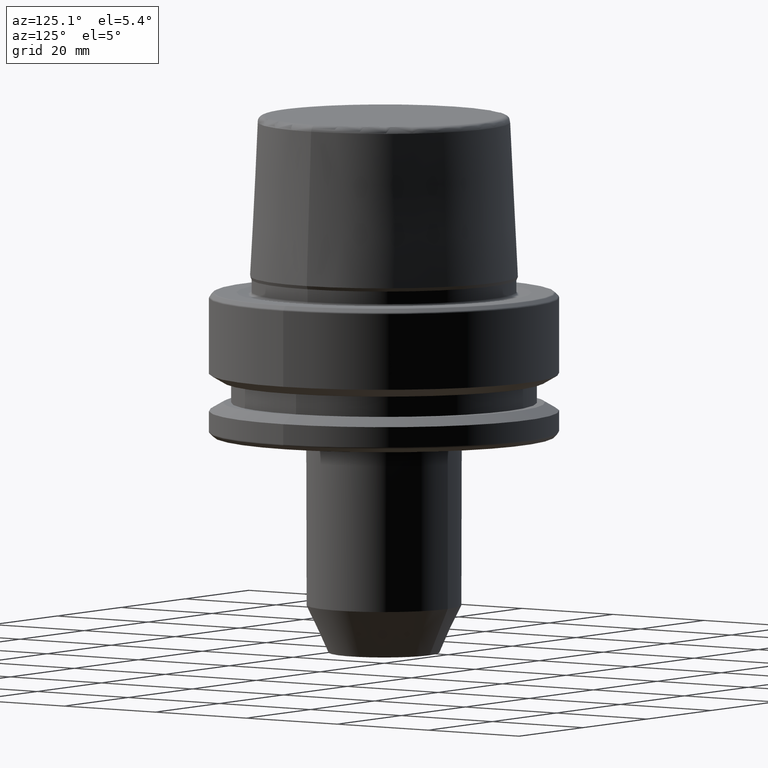
[diagram: clean part render]
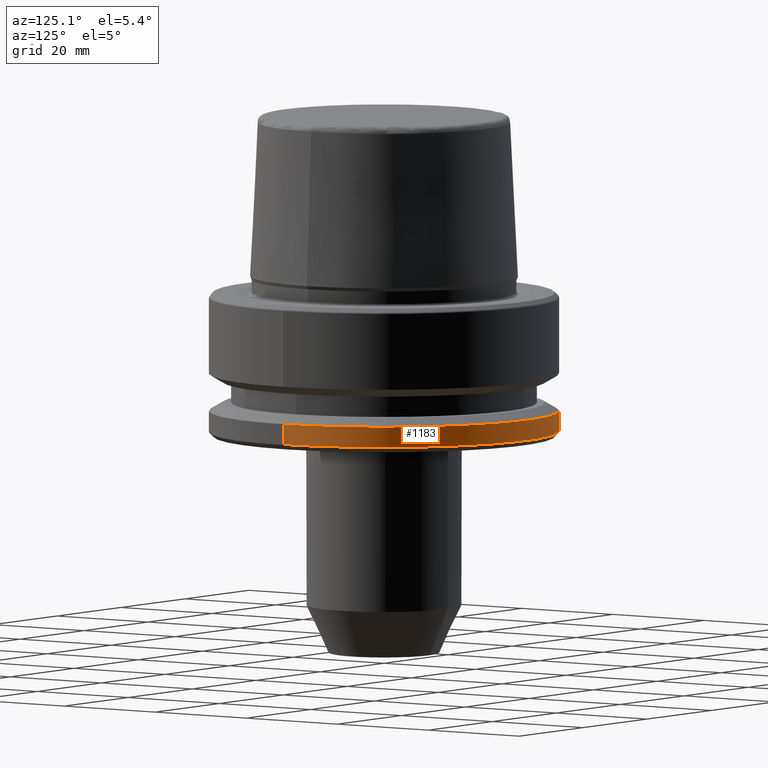
[diagram: same view with one face highlighted and labeled with its STEP entity id]
A machine part, auxiliary view. The second image highlights one B-rep face of the part: STEP entity #1183.
In plain terms, the highlighted cylindrical surface (partial cylindrical patch) has radius 31.5 mm, axis along (-0, -0, 1).
Its self-contained STEP definition (entity closure, byte-faithful):
#4 = ORIENTED_EDGE ( 'NONE', *, *, #1073, .F. ) ;
#9 = DIRECTION ( 'NONE',  ( -0.0000000000000000000, -0.0000000000000000000, 1.000000000000000000 ) ) ;
#66 = EDGE_CURVE ( 'NONE', #1158, #666, #207, .T. ) ;
#140 = DIRECTION ( 'NONE',  ( 1.000000000000000000, 0.0000000000000000000, 0.0000000000000000000 ) ) ;
#155 = VECTOR ( 'NONE', #1110, 1000.000000000000000 ) ;
#201 = CARTESIAN_POINT ( 'NONE',  ( 31.50000000000000000, 0.0000000000000000000, 78.96908074195309300 ) ) ;
#207 = CIRCLE ( 'NONE', #783, 31.50000000000000000 ) ;
#223 = CARTESIAN_POINT ( 'NONE',  ( 0.0000000000000000000, 0.0000000000000000000, 78.96908074195309300 ) ) ;
#308 = DIRECTION ( 'NONE',  ( -0.0000000000000000000, -0.0000000000000000000, 1.000000000000000000 ) ) ;
#351 = VERTEX_POINT ( 'NONE', #1201 ) ;
#393 = VERTEX_POINT ( 'NONE', #1185 ) ;
#424 = ORIENTED_EDGE ( 'NONE', *, *, #66, .F. ) ;
#442 = CARTESIAN_POINT ( 'NONE',  ( -31.50000000000000000, 3.857637417314162700E-015, 78.96908074195309300 ) ) ;
#447 = VECTOR ( 'NONE', #308, 1000.000000000000000 ) ;
#503 = EDGE_CURVE ( 'NONE', #393, #351, #618, .T. ) ;
#584 = CARTESIAN_POINT ( 'NONE',  ( -31.50000000000000000, 0.0000000000000000000, -21.37749907475931700 ) ) ;
#592 = DIRECTION ( 'NONE',  ( 1.000000000000000000, 0.0000000000000000000, 0.0000000000000000000 ) ) ;
#603 = EDGE_CURVE ( 'NONE', #351, #666, #899, .T. ) ;
#618 = CIRCLE ( 'NONE', #1253, 31.50000000000000000 ) ;
#645 = LINE ( 'NONE', #201, #447 ) ;
#658 = FACE_OUTER_BOUND ( 'NONE', #1170, .T. ) ;
#666 = VERTEX_POINT ( 'NONE', #584 ) ;
#667 = ORIENTED_EDGE ( 'NONE', *, *, #603, .T. ) ;
#726 = CARTESIAN_POINT ( 'NONE',  ( 0.0000000000000000000, 0.0000000000000000000, -21.37749907475931700 ) ) ;
#766 = AXIS2_PLACEMENT_3D ( 'NONE', #223, #1099, #900 ) ;
#783 = AXIS2_PLACEMENT_3D ( 'NONE', #726, #9, #592 ) ;
#840 = CARTESIAN_POINT ( 'NONE',  ( 0.0000000000000000000, 0.0000000000000000000, -25.03431457505077200 ) ) ;
#899 = LINE ( 'NONE', #442, #155 ) ;
#900 = DIRECTION ( 'NONE',  ( 1.000000000000000000, 0.0000000000000000000, 0.0000000000000000000 ) ) ;
#1073 = EDGE_CURVE ( 'NONE', #393, #1158, #645, .T. ) ;
#1099 = DIRECTION ( 'NONE',  ( -0.0000000000000000000, -0.0000000000000000000, 1.000000000000000000 ) ) ;
#1108 = ORIENTED_EDGE ( 'NONE', *, *, #503, .T. ) ;
#1110 = DIRECTION ( 'NONE',  ( -0.0000000000000000000, -0.0000000000000000000, 1.000000000000000000 ) ) ;
#1138 = DIRECTION ( 'NONE',  ( -0.0000000000000000000, -0.0000000000000000000, 1.000000000000000000 ) ) ;
#1158 = VERTEX_POINT ( 'NONE', #1194 ) ;
#1170 = EDGE_LOOP ( 'NONE', ( #1108, #667, #424, #4 ) ) ;
#1183 = ADVANCED_FACE ( 'NONE', ( #658 ), #1224, .T. ) ;
#1185 = CARTESIAN_POINT ( 'NONE',  ( 31.50000000000000000, 0.0000000000000000000, -25.03431457505077200 ) ) ;
#1194 = CARTESIAN_POINT ( 'NONE',  ( 31.50000000000000000, 3.857637417314162700E-015, -21.37749907475931700 ) ) ;
#1201 = CARTESIAN_POINT ( 'NONE',  ( -31.50000000000000000, 3.857637417314162700E-015, -25.03431457505077200 ) ) ;
#1224 = CYLINDRICAL_SURFACE ( 'NONE', #766, 31.50000000000000000 ) ;
#1253 = AXIS2_PLACEMENT_3D ( 'NONE', #840, #1138, #140 ) ;